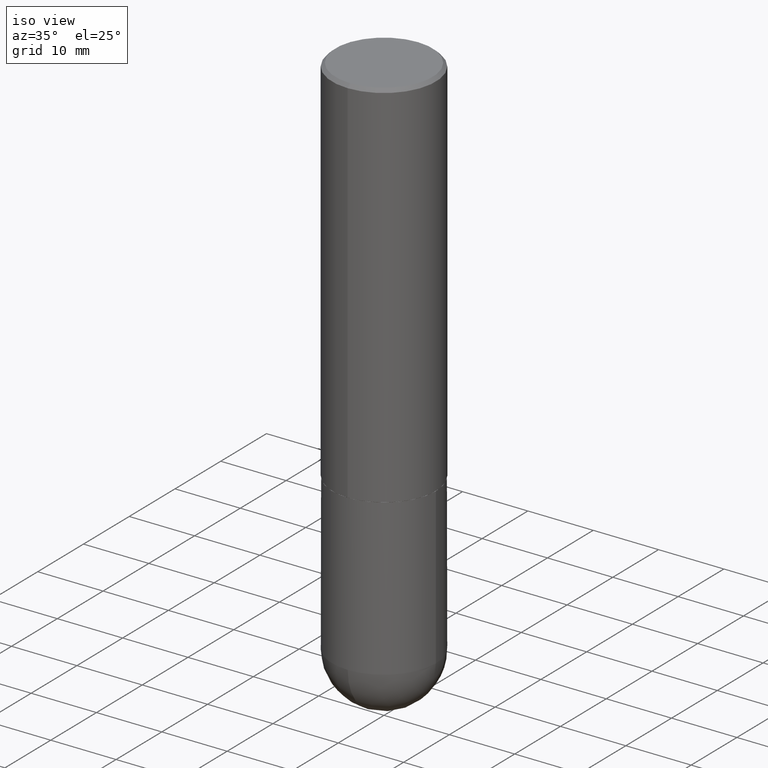
[diagram: clean part render]
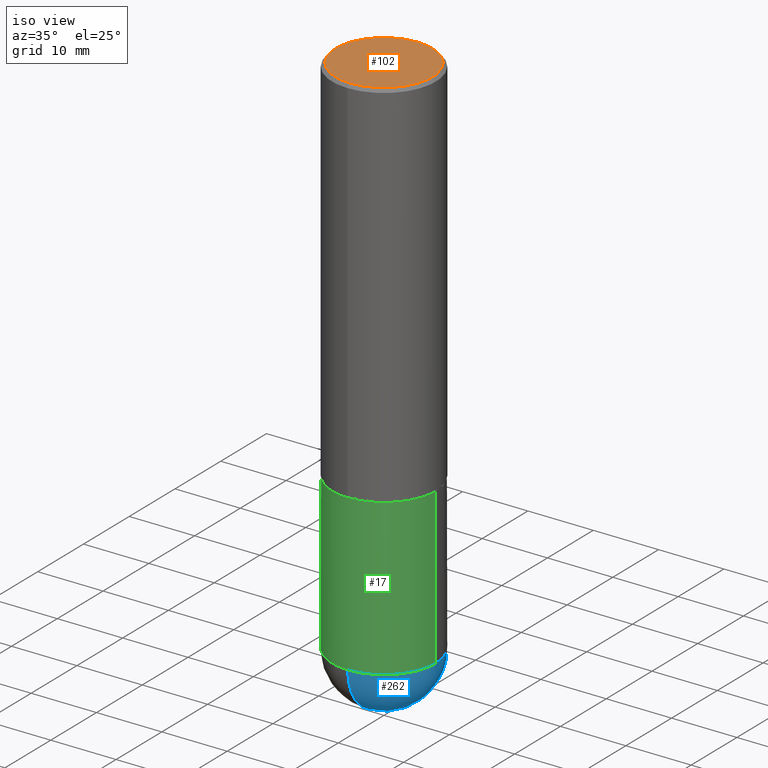
[diagram: same view with three faces highlighted in distinct colors, each labeled with its STEP entity id]
A machine part, iso view with three faces highlighted in distinct colors.
Their STEP definitions:

[orange] entity #102 — the highlighted planar face has unit normal (0, -0, -1).
#3 = AXIS2_PLACEMENT_3D ( 'NONE', #334, #279, #278 ) ;
#29 = EDGE_LOOP ( 'NONE', ( #62, #214 ) ) ;
#41 = VERTEX_POINT ( 'NONE', #234 ) ;
#62 = ORIENTED_EDGE ( 'NONE', *, *, #199, .T. ) ;
#102 = ADVANCED_FACE ( 'NONE', ( #142 ), #212, .F. ) ;
#128 = EDGE_CURVE ( 'NONE', #150, #41, #280, .T. ) ;
#133 = DIRECTION ( 'NONE',  ( 6.982962677686265922E-15, 1.000000000000000000, -3.492809492310029420E-15 ) ) ;
#135 = CARTESIAN_POINT ( 'NONE',  ( -1.365988867275784291E-45, 1.951752159732064067E-31, 5.587914726036888243E-17 ) ) ;
#142 = FACE_OUTER_BOUND ( 'NONE', #29, .T. ) ;
#145 = AXIS2_PLACEMENT_3D ( 'NONE', #205, #305, #133 ) ;
#150 = VERTEX_POINT ( 'NONE', #369 ) ;
#199 = EDGE_CURVE ( 'NONE', #41, #150, #263, .T. ) ;
#205 = CARTESIAN_POINT ( 'NONE',  ( 2.042516583223231356E-15, 0.2924999999999998157, -9.937072028704986215E-16 ) ) ;
#212 = PLANE ( 'NONE',  #145 ) ;
#214 = ORIENTED_EDGE ( 'NONE', *, *, #128, .T. ) ;
#234 = CARTESIAN_POINT ( 'NONE',  ( 2.112346210000094654E-15, 0.2924999999999998157, -9.657676292403140755E-16 ) ) ;
#263 = CIRCLE ( 'NONE', #383, 0.2924999999999998157 ) ;
#278 = DIRECTION ( 'NONE',  ( -6.982962677686265133E-15, -1.000000000000000000, 3.492809492310029420E-15 ) ) ;
#279 = DIRECTION ( 'NONE',  ( -2.444541361576187486E-29, 3.492809492310029420E-15, 1.000000000000000000 ) ) ;
#280 = CIRCLE ( 'NONE', #3, 0.2924999999999998157 ) ;
#305 = DIRECTION ( 'NONE',  ( 2.444541361576187205E-29, -3.492809492310029420E-15, -1.000000000000000000 ) ) ;
#334 = CARTESIAN_POINT ( 'NONE',  ( -1.365988867275784291E-45, 1.951752159732064067E-31, 5.587914726036888243E-17 ) ) ;
#361 = DIRECTION ( 'NONE',  ( -2.444541361576187486E-29, 3.492809492310029420E-15, 1.000000000000000000 ) ) ;
#369 = CARTESIAN_POINT ( 'NONE',  ( -2.075300644325886704E-15, -0.2924999999999998157, 1.077525923761051865E-15 ) ) ;
#383 = AXIS2_PLACEMENT_3D ( 'NONE', #135, #361, #392 ) ;
#392 = DIRECTION ( 'NONE',  ( -6.982962677686265133E-15, -1.000000000000000000, 3.492809492310029420E-15 ) ) ;

[blue] entity #262 — the highlighted spherical surface has radius 7.9375 mm.
#5 = EDGE_CURVE ( 'NONE', #220, #245, #201, .T. ) ;
#14 = VERTEX_POINT ( 'NONE', #302 ) ;
#18 = DIRECTION ( 'NONE',  ( -7.105427357601000281E-15, -1.000000000000000000, 0.000000000000000000 ) ) ;
#33 = DIRECTION ( 'NONE',  ( 1.000000000000000000, -6.982962677686269077E-15, 0.000000000000000000 ) ) ;
#35 = EDGE_LOOP ( 'NONE', ( #148, #174, #231, #353 ) ) ;
#49 = CARTESIAN_POINT ( 'NONE',  ( 7.794931819715121781E-29, -1.112909676756252622E-14, -3.187500000000000000 ) ) ;
#52 = DIRECTION ( 'NONE',  ( -2.445468806185136597E-29, 3.491481338843145583E-15, 1.000000000000000000 ) ) ;
#63 = CIRCLE ( 'NONE', #309, 0.3125000000000002776 ) ;
#87 = FACE_OUTER_BOUND ( 'NONE', #35, .T. ) ;
#90 = DIRECTION ( 'NONE',  ( -1.000000000000000000, 6.982962677686265922E-15, -4.883557194083112901E-29 ) ) ;
#96 = VERTEX_POINT ( 'NONE', #341 ) ;
#114 = CARTESIAN_POINT ( 'NONE',  ( 7.463812041801236655E-29, -1.160327913570257494E-14, -3.187500000000000000 ) ) ;
#117 = DIRECTION ( 'NONE',  ( -2.445468806185136597E-29, 3.491481338843145583E-15, 1.000000000000000000 ) ) ;
#137 = AXIS2_PLACEMENT_3D ( 'NONE', #49, #52, #284 ) ;
#148 = ORIENTED_EDGE ( 'NONE', *, *, #386, .F. ) ;
#151 = DIRECTION ( 'NONE',  ( 1.000000000000000000, -6.982962677686265922E-15, 4.883557194083112340E-29 ) ) ;
#168 = AXIS2_PLACEMENT_3D ( 'NONE', #381, #117, #33 ) ;
#174 = ORIENTED_EDGE ( 'NONE', *, *, #354, .T. ) ;
#181 = DIRECTION ( 'NONE',  ( -1.000000000000000000, 7.105427357601001070E-15, -4.926315508542082329E-29 ) ) ;
#183 = CARTESIAN_POINT ( 'NONE',  ( 7.463812041801236655E-29, -1.160327913570257494E-14, -3.187500000000000000 ) ) ;
#189 = CARTESIAN_POINT ( 'NONE',  ( 2.182175836777035261E-15, 0.3124999999999887867, -3.187500000000000888 ) ) ;
#197 = AXIS2_PLACEMENT_3D ( 'NONE', #183, #151, #221 ) ;
#201 = CIRCLE ( 'NONE', #168, 0.3125000000000000000 ) ;
#208 = AXIS2_PLACEMENT_3D ( 'NONE', #114, #90, #215 ) ;
#215 = DIRECTION ( 'NONE',  ( 6.982962677686265922E-15, 1.000000000000000000, -3.496765431890253764E-15 ) ) ;
#220 = VERTEX_POINT ( 'NONE', #303 ) ;
#221 = DIRECTION ( 'NONE',  ( 6.982962677686265922E-15, 1.000000000000000000, 0.000000000000000000 ) ) ;
#231 = ORIENTED_EDGE ( 'NONE', *, *, #5, .F. ) ;
#243 = CIRCLE ( 'NONE', #137, 0.3125000000000000000 ) ;
#245 = VERTEX_POINT ( 'NONE', #189 ) ;
#250 = SPHERICAL_SURFACE ( 'NONE', #208, 0.3125000000000002776 ) ;
#262 = ADVANCED_FACE ( 'NONE', ( #87 ), #250, .T. ) ;
#284 = DIRECTION ( 'NONE',  ( 1.000000000000000000, -6.982962677686269077E-15, 0.000000000000000000 ) ) ;
#302 = CARTESIAN_POINT ( 'NONE',  ( -2.220446049250237350E-15, -0.3125000000000114908, -3.187499999999998668 ) ) ;
#303 = CARTESIAN_POINT ( 'NONE',  ( 0.3125000000000000000, -1.167464072675676226E-14, -3.187500000000000000 ) ) ;
#309 = AXIS2_PLACEMENT_3D ( 'NONE', #373, #181, #18 ) ;
#315 = EDGE_CURVE ( 'NONE', #14, #220, #243, .T. ) ;
#341 = CARTESIAN_POINT ( 'NONE',  ( 8.241383017002520278E-29, -1.267523194785438148E-14, -3.500000000000000444 ) ) ;
#353 = ORIENTED_EDGE ( 'NONE', *, *, #315, .F. ) ;
#354 = EDGE_CURVE ( 'NONE', #96, #245, #376, .T. ) ;
#373 = CARTESIAN_POINT ( 'NONE',  ( 7.463812041801236655E-29, -1.160327913570257494E-14, -3.187500000000000000 ) ) ;
#376 = CIRCLE ( 'NONE', #197, 0.3125000000000002776 ) ;
#381 = CARTESIAN_POINT ( 'NONE',  ( 7.794931819715121781E-29, -1.112909676756252622E-14, -3.187500000000000000 ) ) ;
#386 = EDGE_CURVE ( 'NONE', #96, #14, #63, .T. ) ;

[green] entity #17 — the highlighted cylindrical surface (partial cylindrical patch) has radius 7.9375 mm, axis along (-0, 0, 1).
#14 = VERTEX_POINT ( 'NONE', #302 ) ;
#17 = ADVANCED_FACE ( 'NONE', ( #169 ), #76, .T. ) ;
#25 = EDGE_CURVE ( 'NONE', #72, #14, #402, .T. ) ;
#36 = AXIS2_PLACEMENT_3D ( 'NONE', #200, #167, #300 ) ;
#40 = DIRECTION ( 'NONE',  ( -2.445468806185136877E-29, 3.491481338843145188E-15, 1.000000000000000000 ) ) ;
#44 = LINE ( 'NONE', #180, #388 ) ;
#49 = CARTESIAN_POINT ( 'NONE',  ( 7.794931819715121781E-29, -1.112909676756252622E-14, -3.187500000000000000 ) ) ;
#52 = DIRECTION ( 'NONE',  ( -2.445468806185136597E-29, 3.491481338843145583E-15, 1.000000000000000000 ) ) ;
#72 = VERTEX_POINT ( 'NONE', #166 ) ;
#76 = CYLINDRICAL_SURFACE ( 'NONE', #103, 0.3125000000000000000 ) ;
#82 = DIRECTION ( 'NONE',  ( -2.445468806185136597E-29, 3.491481338843145583E-15, 1.000000000000000000 ) ) ;
#91 = VERTEX_POINT ( 'NONE', #306 ) ;
#99 = CARTESIAN_POINT ( 'NONE',  ( 0.000000000000000000, 0.000000000000000000, 0.000000000000000000 ) ) ;
#103 = AXIS2_PLACEMENT_3D ( 'NONE', #99, #227, #332 ) ;
#132 = EDGE_CURVE ( 'NONE', #91, #336, #329, .T. ) ;
#137 = AXIS2_PLACEMENT_3D ( 'NONE', #49, #52, #284 ) ;
#158 = ORIENTED_EDGE ( 'NONE', *, *, #132, .F. ) ;
#166 = CARTESIAN_POINT ( 'NONE',  ( -0.3125000000000000000, -7.272018840729489255E-15, -3.187500000000000000 ) ) ;
#167 = DIRECTION ( 'NONE',  ( -2.445468806185136597E-29, 3.491481338843145583E-15, 1.000000000000000000 ) ) ;
#169 = FACE_OUTER_BOUND ( 'NONE', #292, .T. ) ;
#180 = CARTESIAN_POINT ( 'NONE',  ( 0.3125000000000000000, -2.182175836776958347E-15, 1.523805242436230075E-29 ) ) ;
#194 = ORIENTED_EDGE ( 'NONE', *, *, #25, .T. ) ;
#196 = EDGE_CURVE ( 'NONE', #220, #336, #44, .T. ) ;
#200 = CARTESIAN_POINT ( 'NONE',  ( 7.794931819715121781E-29, -1.112909676756252622E-14, -3.187500000000000000 ) ) ;
#220 = VERTEX_POINT ( 'NONE', #303 ) ;
#224 = EDGE_CURVE ( 'NONE', #72, #91, #273, .T. ) ;
#227 = DIRECTION ( 'NONE',  ( -2.445468806185136597E-29, 3.491481338843145583E-15, 1.000000000000000000 ) ) ;
#228 = VECTOR ( 'NONE', #40, 39.37007874015748143 ) ;
#243 = CIRCLE ( 'NONE', #137, 0.3125000000000000000 ) ;
#273 = LINE ( 'NONE', #395, #228 ) ;
#284 = DIRECTION ( 'NONE',  ( 1.000000000000000000, -6.982962677686269077E-15, 0.000000000000000000 ) ) ;
#289 = ORIENTED_EDGE ( 'NONE', *, *, #224, .F. ) ;
#292 = EDGE_LOOP ( 'NONE', ( #289, #194, #371, #338, #158 ) ) ;
#300 = DIRECTION ( 'NONE',  ( 1.000000000000000000, -6.982962677686269077E-15, 0.000000000000000000 ) ) ;
#302 = CARTESIAN_POINT ( 'NONE',  ( -2.220446049250237350E-15, -0.3125000000000114908, -3.187499999999998668 ) ) ;
#303 = CARTESIAN_POINT ( 'NONE',  ( 0.3125000000000000000, -1.167464072675676226E-14, -3.187500000000000000 ) ) ;
#306 = CARTESIAN_POINT ( 'NONE',  ( -0.3125000000000000000, -7.272018840729487678E-15, -2.249999999999999556 ) ) ;
#307 = DIRECTION ( 'NONE',  ( -2.445468806185136877E-29, 3.491481338843145188E-15, 1.000000000000000000 ) ) ;
#315 = EDGE_CURVE ( 'NONE', #14, #220, #243, .T. ) ;
#317 = CARTESIAN_POINT ( 'NONE',  ( 0.3125000000000000000, -1.003800884917403364E-14, -2.249999999999999556 ) ) ;
#329 = CIRCLE ( 'NONE', #345, 0.3125000000000000000 ) ;
#332 = DIRECTION ( 'NONE',  ( 1.000000000000000000, -6.982962677686266711E-15, 4.876176775795936353E-29 ) ) ;
#336 = VERTEX_POINT ( 'NONE', #317 ) ;
#338 = ORIENTED_EDGE ( 'NONE', *, *, #196, .T. ) ;
#339 = CARTESIAN_POINT ( 'NONE',  ( 5.502304813916556222E-29, -7.855833012397075293E-15, -2.249999999999999556 ) ) ;
#342 = DIRECTION ( 'NONE',  ( 1.000000000000000000, -6.982962677686265133E-15, 0.000000000000000000 ) ) ;
#345 = AXIS2_PLACEMENT_3D ( 'NONE', #339, #82, #342 ) ;
#371 = ORIENTED_EDGE ( 'NONE', *, *, #315, .T. ) ;
#388 = VECTOR ( 'NONE', #307, 39.37007874015748143 ) ;
#395 = CARTESIAN_POINT ( 'NONE',  ( -0.3125000000000000000, 2.220446049250313081E-15, -1.537167215704658232E-29 ) ) ;
#402 = CIRCLE ( 'NONE', #36, 0.3125000000000000000 ) ;